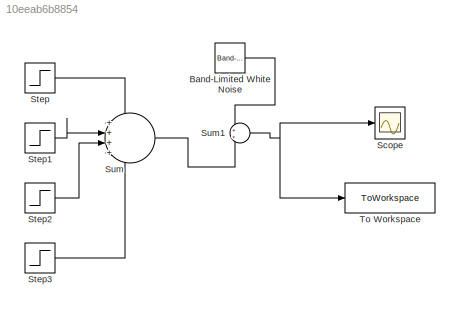
MODEL slx_10eeab6b8854
KIND model
CONFIG AbsTol = auto
CONFIG EnableMultiTasking = off
CONFIG FixedStep = auto
CONFIG MaxStep = auto
CONFIG MinStep = auto
CONFIG RelTol = 1e-3
CONFIG SampleTimeConstraint = Unconstrained
CONFIG SolverName = VariableStepAuto
CONFIG StartTime = 0.0
CONFIG StopTime = 15
BLOCK [Reference] Band-Limited White Noise  REF=simulink/Sources/Band-Limited
White Noise
  Ports = [0, 1]
  SourceBlock = simulink/Sources/Band-Limited\nWhite Noise
  SourceProductBaseCode = SL
  SourceType = Band-Limited White Noise.
BLOCK [Scope] Scope
  Floating = off
  NumInputPorts = 1
  Ports = [1]
  ScopeSpecificationString = Simulink.scopes.TimeScopeBlockCfg('CurrentConfiguration', extmgr.ConfigurationSet(extmgr.Configuration('Core','General UI',true),extmgr.Configuration('Core','Source UI',true),extmgr.Configuration('Sources','WiredSimulink',true),extmgr.Configuration('Visuals','Time Domain',true,'SerializedDisplays',{struct('MinYLimReal','-17.32702','MaxYLimReal','122.37965','YLabelReal','','MinYLimMag','0.00000','M...<+1334ch>
BLOCK [Step] Step
  After = 30
  SampleTime = 0
  Time = 3
BLOCK [Step] Step1
  After = 60
  SampleTime = 0
  Time = 6
BLOCK [Step] Step2
  After = -45
  SampleTime = 0
  Time = 9
BLOCK [Step] Step3
  After = 60
  SampleTime = 0
  Time = 11
BLOCK [Sum] Sum
  Inputs = ++++
  Ports = [4, 1]
BLOCK [Sum] Sum1
  Ports = [2, 1]
BLOCK [ToWorkspace] To Workspace
  FixptAsFi = on
  MaxDataPoints = inf
  Ports = [1]
  SampleTime = -1
  VariableName = signal
LINE Band-Limited White Noise:1 -> Sum1:1
LINE Step1:1 -> Sum:2
LINE Step2:1 -> Sum:3
LINE Step3:1 -> Sum:4
LINE Step:1 -> Sum:1
NET Sum1:1 -> Scope:1, To Workspace:1
LINE Sum:1 -> Sum1:2
note: NET lines group one-source signal fan-out (src -> all destinations, sorted); 1:1 wires keep LINE
